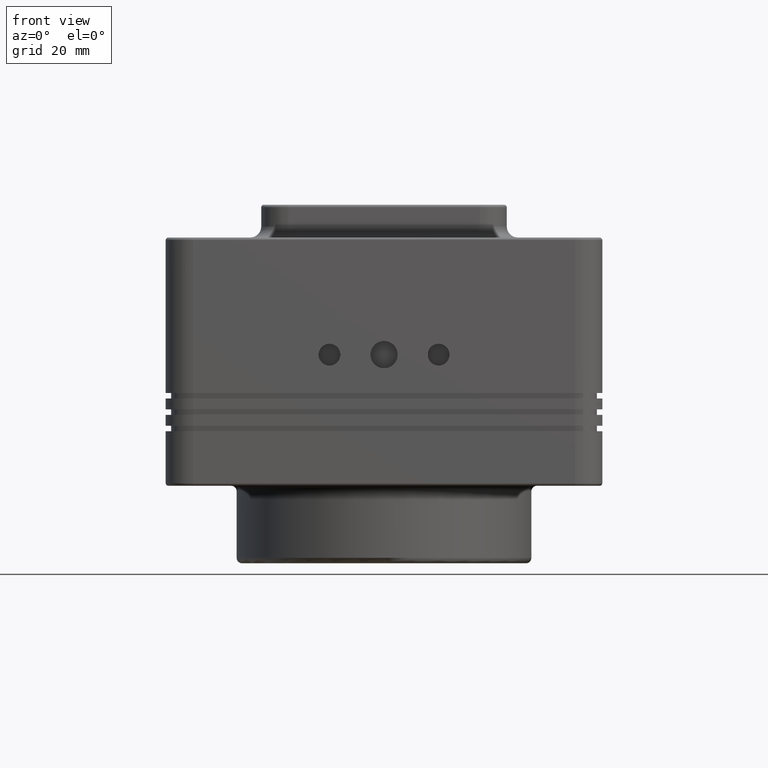
[diagram: clean part render]
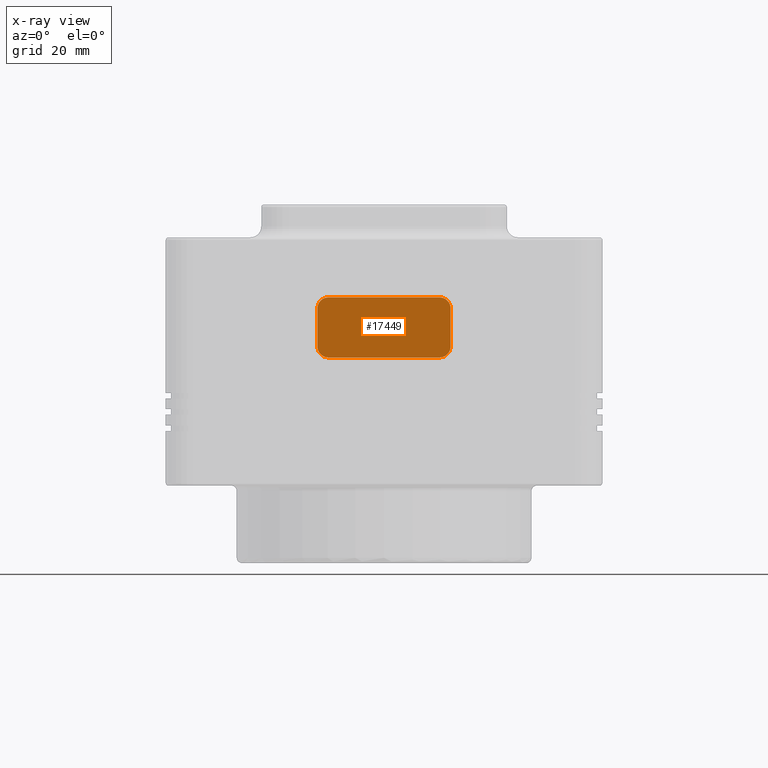
[diagram: x-ray — body ghosted, one internal face saturated and labeled with its STEP entity id]
A machine part, front view, then the same camera in x-ray: the body is ghosted and one INTERNAL B-rep face — a face not visible from any outside direction — is saturated and labeled: STEP entity #17449.
In plain terms, the highlighted planar face has unit normal (0, 1, 0).
Its self-contained STEP definition (entity closure, byte-faithful):
#752 = CARTESIAN_POINT ( 'NONE',  ( 12.19999999999999751, 30.00000000000000000, 7.699999999999989519 ) ) ;
#873 = CARTESIAN_POINT ( 'NONE',  ( -12.19999999999999929, 30.00000000000000000, 7.699999999999989519 ) ) ;
#3353 = DIRECTION ( 'NONE',  ( 0.000000000000000000, 1.000000000000000000, 0.000000000000000000 ) ) ;
#3514 = EDGE_CURVE ( 'NONE', #41077, #40338, #22988, .T. ) ;
#4037 = DIRECTION ( 'NONE',  ( 0.000000000000000000, 0.000000000000000000, 1.000000000000000000 ) ) ;
#4777 = DIRECTION ( 'NONE',  ( -1.000000000000000000, -0.000000000000000000, -0.000000000000000000 ) ) ;
#5957 = PLANE ( 'NONE',  #17102 ) ;
#8129 = ORIENTED_EDGE ( 'NONE', *, *, #19529, .T. ) ;
#8812 = VERTEX_POINT ( 'NONE', #8949 ) ;
#8949 = CARTESIAN_POINT ( 'NONE',  ( -10.19999999999999929, 30.00000000000000000, 18.69999999999998863 ) ) ;
#9155 = VECTOR ( 'NONE', #21999, 1000.000000000000000 ) ;
#10430 = CIRCLE ( 'NONE', #32672, 2.000000000000000000 ) ;
#11825 = DIRECTION ( 'NONE',  ( 0.000000000000000000, 1.000000000000000000, 0.000000000000000000 ) ) ;
#14135 = AXIS2_PLACEMENT_3D ( 'NONE', #22121, #3353, #4037 ) ;
#14317 = CARTESIAN_POINT ( 'NONE',  ( 10.19999999999999751, 30.00000000000000000, 7.699999999999989519 ) ) ;
#14694 = ORIENTED_EDGE ( 'NONE', *, *, #20115, .T. ) ;
#15741 = EDGE_CURVE ( 'NONE', #30947, #8812, #40084, .T. ) ;
#16453 = ORIENTED_EDGE ( 'NONE', *, *, #3514, .T. ) ;
#17102 = AXIS2_PLACEMENT_3D ( 'NONE', #37959, #20122, #44903 ) ;
#17449 = ADVANCED_FACE ( 'NONE', ( #31245 ), #5957, .T. ) ;
#17772 = VERTEX_POINT ( 'NONE', #22402 ) ;
#18622 = AXIS2_PLACEMENT_3D ( 'NONE', #43610, #11825, #22511 ) ;
#18844 = ORIENTED_EDGE ( 'NONE', *, *, #24398, .T. ) ;
#19529 = EDGE_CURVE ( 'NONE', #40338, #27011, #10430, .T. ) ;
#20115 = EDGE_CURVE ( 'NONE', #17772, #41077, #28232, .T. ) ;
#20122 = DIRECTION ( 'NONE',  ( 0.000000000000000000, 1.000000000000000000, 0.000000000000000000 ) ) ;
#20743 = EDGE_CURVE ( 'NONE', #23199, #36159, #27528, .T. ) ;
#21999 = DIRECTION ( 'NONE',  ( 0.000000000000000000, 0.000000000000000000, 1.000000000000000000 ) ) ;
#22105 = VECTOR ( 'NONE', #4777, 1000.000000000000000 ) ;
#22121 = CARTESIAN_POINT ( 'NONE',  ( 10.19999999999999751, 30.00000000000000000, 16.69999999999998508 ) ) ;
#22254 = ORIENTED_EDGE ( 'NONE', *, *, #23669, .T. ) ;
#22402 = CARTESIAN_POINT ( 'NONE',  ( 10.19999999999999751, 30.00000000000000000, 18.69999999999998863 ) ) ;
#22511 = DIRECTION ( 'NONE',  ( 0.000000000000000000, 0.000000000000000000, 1.000000000000000000 ) ) ;
#22988 = LINE ( 'NONE', #752, #25338 ) ;
#23097 = AXIS2_PLACEMENT_3D ( 'NONE', #27538, #24768, #42371 ) ;
#23199 = VERTEX_POINT ( 'NONE', #30585 ) ;
#23463 = ORIENTED_EDGE ( 'NONE', *, *, #44662, .T. ) ;
#23648 = ORIENTED_EDGE ( 'NONE', *, *, #15741, .T. ) ;
#23669 = EDGE_CURVE ( 'NONE', #8812, #17772, #39028, .T. ) ;
#24098 = EDGE_LOOP ( 'NONE', ( #16453, #8129, #23463, #40629, #18844, #23648, #22254, #14694 ) ) ;
#24398 = EDGE_CURVE ( 'NONE', #36159, #30947, #28721, .T. ) ;
#24768 = DIRECTION ( 'NONE',  ( 0.000000000000000000, 1.000000000000000000, 0.000000000000000000 ) ) ;
#25338 = VECTOR ( 'NONE', #39672, 1000.000000000000000 ) ;
#25593 = CARTESIAN_POINT ( 'NONE',  ( -12.19999999999999929, 30.00000000000000000, 18.69999999999998863 ) ) ;
#26769 = CARTESIAN_POINT ( 'NONE',  ( -12.19999999999999929, 30.00000000000000000, 16.69999999999998508 ) ) ;
#27011 = VERTEX_POINT ( 'NONE', #14317 ) ;
#27528 = CIRCLE ( 'NONE', #23097, 2.000000000000000000 ) ;
#27538 = CARTESIAN_POINT ( 'NONE',  ( -10.19999999999999929, 30.00000000000000000, 9.699999999999990408 ) ) ;
#28228 = DIRECTION ( 'NONE',  ( 0.000000000000000000, 1.000000000000000000, 0.000000000000000000 ) ) ;
#28232 = CIRCLE ( 'NONE', #14135, 2.000000000000001776 ) ;
#28721 = LINE ( 'NONE', #31987, #9155 ) ;
#30585 = CARTESIAN_POINT ( 'NONE',  ( -10.19999999999999929, 30.00000000000000000, 7.699999999999989519 ) ) ;
#30947 = VERTEX_POINT ( 'NONE', #26769 ) ;
#31245 = FACE_OUTER_BOUND ( 'NONE', #24098, .T. ) ;
#31705 = CARTESIAN_POINT ( 'NONE',  ( 10.19999999999999751, 30.00000000000000000, 9.699999999999990408 ) ) ;
#31987 = CARTESIAN_POINT ( 'NONE',  ( -12.19999999999999929, 30.00000000000000000, 7.699999999999989519 ) ) ;
#32095 = VECTOR ( 'NONE', #39701, 1000.000000000000000 ) ;
#32630 = LINE ( 'NONE', #873, #22105 ) ;
#32672 = AXIS2_PLACEMENT_3D ( 'NONE', #31705, #28228, #41894 ) ;
#33739 = CARTESIAN_POINT ( 'NONE',  ( -12.19999999999999929, 30.00000000000000000, 9.699999999999990408 ) ) ;
#36159 = VERTEX_POINT ( 'NONE', #33739 ) ;
#37959 = CARTESIAN_POINT ( 'NONE',  ( 0.000000000000000000, 30.00000000000000000, 0.000000000000000000 ) ) ;
#39028 = LINE ( 'NONE', #25593, #32095 ) ;
#39571 = CARTESIAN_POINT ( 'NONE',  ( 12.19999999999999751, 30.00000000000000000, 9.699999999999990408 ) ) ;
#39672 = DIRECTION ( 'NONE',  ( -0.000000000000000000, -0.000000000000000000, -1.000000000000000000 ) ) ;
#39701 = DIRECTION ( 'NONE',  ( 1.000000000000000000, 0.000000000000000000, 0.000000000000000000 ) ) ;
#40084 = CIRCLE ( 'NONE', #18622, 2.000000000000001776 ) ;
#40338 = VERTEX_POINT ( 'NONE', #39571 ) ;
#40629 = ORIENTED_EDGE ( 'NONE', *, *, #20743, .T. ) ;
#41077 = VERTEX_POINT ( 'NONE', #45383 ) ;
#41894 = DIRECTION ( 'NONE',  ( 0.000000000000000000, 0.000000000000000000, 1.000000000000000000 ) ) ;
#42371 = DIRECTION ( 'NONE',  ( 0.000000000000000000, 0.000000000000000000, 1.000000000000000000 ) ) ;
#43610 = CARTESIAN_POINT ( 'NONE',  ( -10.19999999999999929, 30.00000000000000000, 16.69999999999998508 ) ) ;
#44662 = EDGE_CURVE ( 'NONE', #27011, #23199, #32630, .T. ) ;
#44903 = DIRECTION ( 'NONE',  ( 0.000000000000000000, -0.000000000000000000, 1.000000000000000000 ) ) ;
#45383 = CARTESIAN_POINT ( 'NONE',  ( 12.19999999999999751, 30.00000000000000000, 16.69999999999998508 ) ) ;